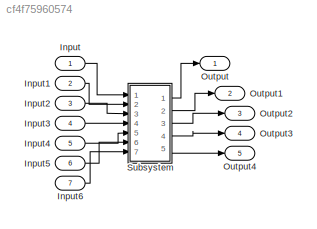
MODEL slx_cf4f75960574
KIND model
CONFIG AbsTol = auto
CONFIG EnableMultiTasking = off
CONFIG FixedStep = auto
CONFIG MaxStep = auto
CONFIG MinStep = auto
CONFIG RelTol = 1e-3
CONFIG SampleTimeConstraint = Unconstrained
CONFIG SolverName = VariableStepAuto
CONFIG StartTime = 0.0
CONFIG StopTime = 10.0
BLOCK [Inport] Input
BLOCK [Inport] Input1
  Port = 2
BLOCK [Inport] Input2
  Port = 3
BLOCK [Inport] Input3
  Port = 4
BLOCK [Inport] Input4
  Port = 5
BLOCK [Inport] Input5
  Port = 6
BLOCK [Inport] Input6
  Port = 7
BLOCK [Outport] Output
BLOCK [Outport] Output1
  Port = 2
BLOCK [Outport] Output2
  Port = 3
BLOCK [Outport] Output3
  Port = 4
BLOCK [Outport] Output4
  Port = 5
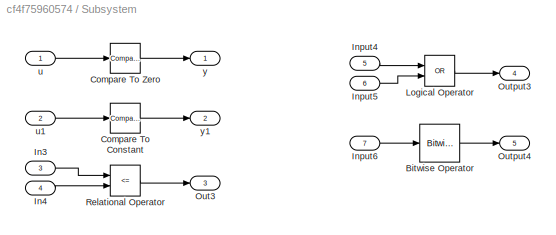
BLOCK [SubSystem] Subsystem
  Ports = [7, 5]
  RequestExecContextInheritance = off
BLOCK [Reference] Subsystem/Bitwise Operator  REF=simulink/Logic and Bit
Operations/Bitwise
Operator
  Ports = [1, 1]
  SourceBlock = simulink/Logic and Bit\nOperations/Bitwise\nOperator
  SourceProductBaseCode = SL
  SourceType = Bitwise Operator
BLOCK [Reference] Subsystem/Compare To Constant  REF=simulink/Logic and Bit
Operations/Compare
To Constant
  Ports = [1, 1]
  SourceBlock = simulink/Logic and Bit\nOperations/Compare\nTo Constant
  SourceProductBaseCode = SL
  SourceType = Compare To Constant
BLOCK [Reference] Subsystem/Compare To Zero  REF=simulink/Logic and Bit
Operations/Compare
To Zero
  Ports = [1, 1]
  SourceBlock = simulink/Logic and Bit\nOperations/Compare\nTo Zero
  SourceProductBaseCode = SL
  SourceType = Compare To Zero
BLOCK [Inport] Subsystem/In3
  Port = 3
BLOCK [Inport] Subsystem/In4
  Port = 4
BLOCK [Inport] Subsystem/Input4
  Port = 5
BLOCK [Inport] Subsystem/Input5
  Port = 6
BLOCK [Inport] Subsystem/Input6
  OutDataTypeStr = uint64
  Port = 7
BLOCK [Logic] Subsystem/Logical Operator
  AllPortsSameDT = off
  Operator = OR
  OutDataTypeStr = boolean
  Ports = [2, 1]
BLOCK [Outport] Subsystem/Out3
  Port = 3
BLOCK [Outport] Subsystem/Output3
  Port = 4
BLOCK [Outport] Subsystem/Output4
  OutDataTypeStr = uint64
  Port = 5
BLOCK [RelationalOperator] Subsystem/Relational Operator
  InputSameDT = off
  Operator = <=
  OutDataTypeStr = boolean
  Ports = [2, 1]
  RndMeth = Simplest
BLOCK [Inport] Subsystem/u
BLOCK [Inport] Subsystem/u1
  Port = 2
BLOCK [Outport] Subsystem/y
BLOCK [Outport] Subsystem/y1
  Port = 2
LINE Input1:1 -> Subsystem:2
LINE Input2:1 -> Subsystem:3
LINE Input3:1 -> Subsystem:4
LINE Input4:1 -> Subsystem:5
LINE Input5:1 -> Subsystem:6
LINE Input6:1 -> Subsystem:7
LINE Input:1 -> Subsystem:1
LINE Subsystem/Bitwise Operator:1 -> Subsystem/Output4:1
LINE Subsystem/Compare To Constant:1 -> Subsystem/y1:1
LINE Subsystem/Compare To Zero:1 -> Subsystem/y:1
LINE Subsystem/In3:1 -> Subsystem/Relational Operator:1
LINE Subsystem/In4:1 -> Subsystem/Relational Operator:2
LINE Subsystem/Input4:1 -> Subsystem/Logical Operator:1
LINE Subsystem/Input5:1 -> Subsystem/Logical Operator:2
LINE Subsystem/Input6:1 -> Subsystem/Bitwise Operator:1
LINE Subsystem/Logical Operator:1 -> Subsystem/Output3:1
LINE Subsystem/Relational Operator:1 -> Subsystem/Out3:1
LINE Subsystem/u1:1 -> Subsystem/Compare To Constant:1
LINE Subsystem/u:1 -> Subsystem/Compare To Zero:1
LINE Subsystem:1 -> Output:1
LINE Subsystem:2 -> Output1:1
LINE Subsystem:3 -> Output2:1
LINE Subsystem:4 -> Output3:1
LINE Subsystem:5 -> Output4:1
